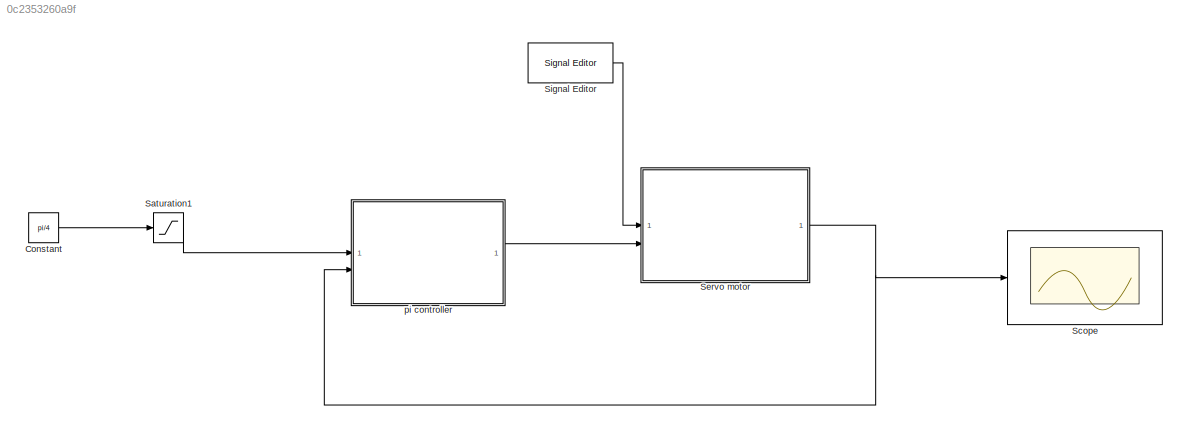
MODEL slx_0c2353260a9f
KIND model
CONFIG AbsTol = auto
CONFIG EnableMultiTasking = off
CONFIG FixedStep = auto
CONFIG MaxStep = auto
CONFIG MinStep = auto
CONFIG RelTol = 1e-3
CONFIG SampleTimeConstraint = Unconstrained
CONFIG SolverName = ode15s
CONFIG StartTime = 0.0
CONFIG StopTime = 10.0
WORKSPACE source: mxarray member
WORKSPACE J = 5e-05
WORKSPACE L = 0.01
WORKSPACE R = 4
WORKSPACE b = 0.0005
WORKSPACE k = 0.2
WORKSPACE ki = 7.33
WORKSPACE kp = 9.39
WORKSPACE ts = 0.1
WORKSPACE v = 7.4
BLOCK [Constant] Constant
  Value = pi/4
BLOCK [Saturate] Saturation1
  LowerLimit = -pi/4
  UpperLimit = pi/4
BLOCK [Scope] Scope
  Floating = off
  NumInputPorts = 1
  ScopeSpecificationString = Simulink.scopes.TimeScopeBlockCfg('CurrentConfiguration', extmgr.ConfigurationSet(extmgr.Configuration('Core','General UI',true),extmgr.Configuration('Core','Source UI',true),extmgr.Configuration('Sources','WiredSimulink',true),extmgr.Configuration('Visuals','Time Domain',true,'SerializedDisplays',{struct('MinYLimReal','-1.16842','MaxYLimReal','2.94116','YLabelReal','','MinYLimMag','0.00000','MaxY...<+1660ch>
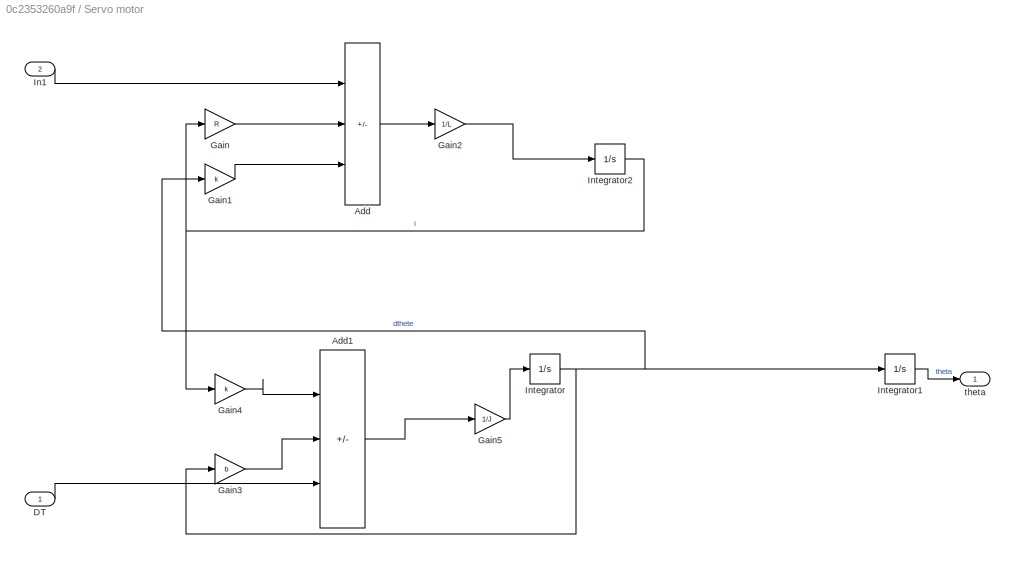
BLOCK [SubSystem] Servo motor
BLOCK [Sum] Servo motor/Add
  IconShape = rectangular
  Inputs = +--
BLOCK [Sum] Servo motor/Add1
  IconShape = rectangular
  Inputs = +-+
BLOCK [Inport] Servo motor/DT
BLOCK [Gain] Servo motor/Gain
  Gain = R
BLOCK [Gain] Servo motor/Gain1
  Gain = k
BLOCK [Gain] Servo motor/Gain2
  Gain = 1/L
BLOCK [Gain] Servo motor/Gain3
  Gain = b
BLOCK [Gain] Servo motor/Gain4
  Gain = k
BLOCK [Gain] Servo motor/Gain5
  Gain = 1/J
BLOCK [Inport] Servo motor/In1
  Port = 2
BLOCK [Integrator] Servo motor/Integrator
BLOCK [Integrator] Servo motor/Integrator1
BLOCK [Integrator] Servo motor/Integrator2
BLOCK [Outport] Servo motor/theta
BLOCK [Reference] Signal Editor  REF=SignalEditorBlockLib/Signal Editor
  LibrarySourceBlock = simulink/Sources/Signal Editor
  SourceBlock = SignalEditorBlockLib/Signal Editor
  SourceType = SignalEditor
  UserDataPersistent = on
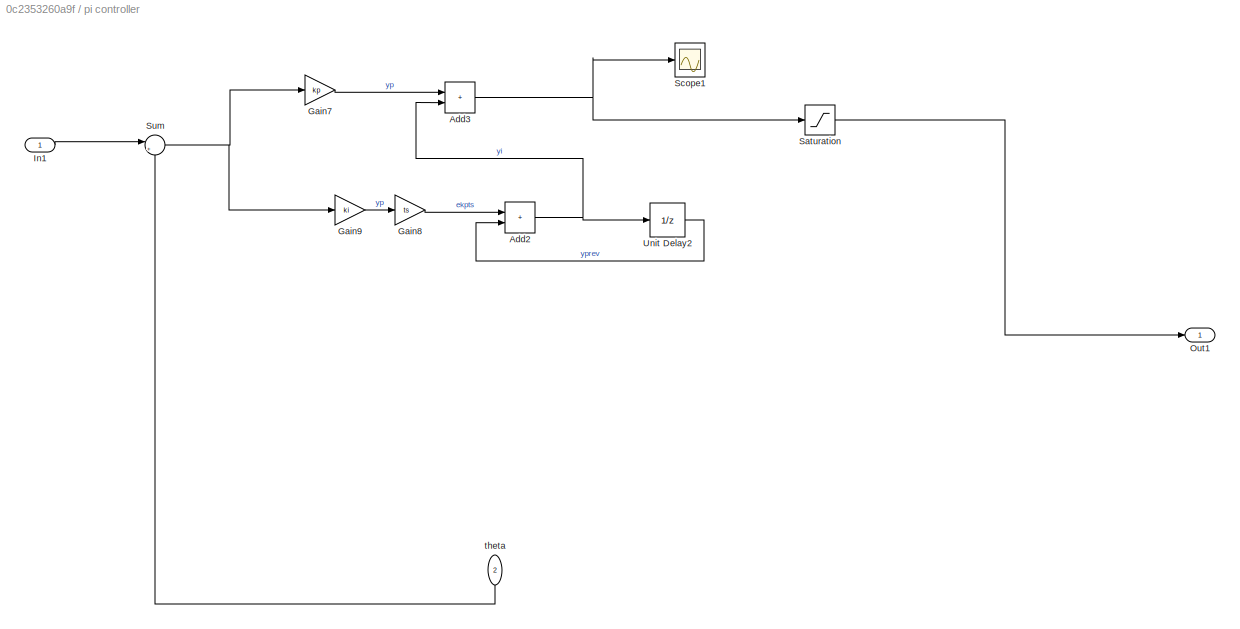
BLOCK [SubSystem] pi controller
  TreatAsAtomicUnit = on
BLOCK [Sum] pi controller/Add2
  IconShape = rectangular
BLOCK [Sum] pi controller/Add3
  IconShape = rectangular
BLOCK [Gain] pi controller/Gain7
  Gain = kp
BLOCK [Gain] pi controller/Gain8
  Gain = ts
BLOCK [Gain] pi controller/Gain9
  Gain = ki
BLOCK [Inport] pi controller/In1
BLOCK [Outport] pi controller/Out1
BLOCK [Saturate] pi controller/Saturation
  LowerLimit = -v
  UpperLimit = v
BLOCK [Scope] pi controller/Scope1
  Floating = off
  NumInputPorts = 1
  ScopeSpecificationString = Simulink.scopes.TimeScopeBlockCfg('CurrentConfiguration', extmgr.ConfigurationSet(extmgr.Configuration('Core','General UI',true),extmgr.Configuration('Core','Source UI',true),extmgr.Configuration('Sources','WiredSimulink',true,'DataLoggingVariableName','ScopeData1'),extmgr.Configuration('Visuals','Time Domain',true,'SerializedDisplays',{struct('MinYLimReal','-1.04106','MaxYLimReal','8.94966','YLab...<+2233ch>
BLOCK [Sum] pi controller/Sum
  Inputs = |+-
BLOCK [UnitDelay] pi controller/Unit Delay2
  HasFrameUpgradeWarning = on
  SampleTime = ts
BLOCK [Inport] pi controller/theta
  NameLocation = left
  Port = 2
LINE Constant:1 -> Saturation1:1
LINE Saturation1:1 -> pi controller:1
LINE Servo motor/Add1:1 -> Servo motor/Gain5:1
LINE Servo motor/Add:1 -> Servo motor/Gain2:1
LINE Servo motor/DT:1 -> Servo motor/Add1:3
LINE Servo motor/Gain1:1 -> Servo motor/Add:3
LINE Servo motor/Gain2:1 -> Servo motor/Integrator2:1
LINE Servo motor/Gain3:1 -> Servo motor/Add1:2
LINE Servo motor/Gain4:1 -> Servo motor/Add1:1
LINE Servo motor/Gain5:1 -> Servo motor/Integrator:1
LINE Servo motor/Gain:1 -> Servo motor/Add:2
LINE Servo motor/In1:1 -> Servo motor/Add:1
LINE Servo motor/Integrator1:1 -> Servo motor/theta:1
NET Servo motor/Integrator2:1 -> Servo motor/Gain4:1, Servo motor/Gain:1
NET Servo motor/Integrator:1 -> Servo motor/Gain1:1, Servo motor/Gain3:1, Servo motor/Integrator1:1
NET Servo motor:1 -> Scope:1, pi controller:2
LINE Signal Editor:1 -> Servo motor:1
NET pi controller/Add2:1 -> pi controller/Add3:2, pi controller/Unit Delay2:1
NET pi controller/Add3:1 -> pi controller/Saturation:1, pi controller/Scope1:1
LINE pi controller/Gain7:1 -> pi controller/Add3:1
LINE pi controller/Gain8:1 -> pi controller/Add2:1
LINE pi controller/Gain9:1 -> pi controller/Gain8:1
LINE pi controller/In1:1 -> pi controller/Sum:1
LINE pi controller/Saturation:1 -> pi controller/Out1:1
NET pi controller/Sum:1 -> pi controller/Gain7:1, pi controller/Gain9:1
LINE pi controller/Unit Delay2:1 -> pi controller/Add2:2
LINE pi controller/theta:1 -> pi controller/Sum:2
LINE pi controller:1 -> Servo motor:2
note: NET lines group one-source signal fan-out (src -> all destinations, sorted); 1:1 wires keep LINE
